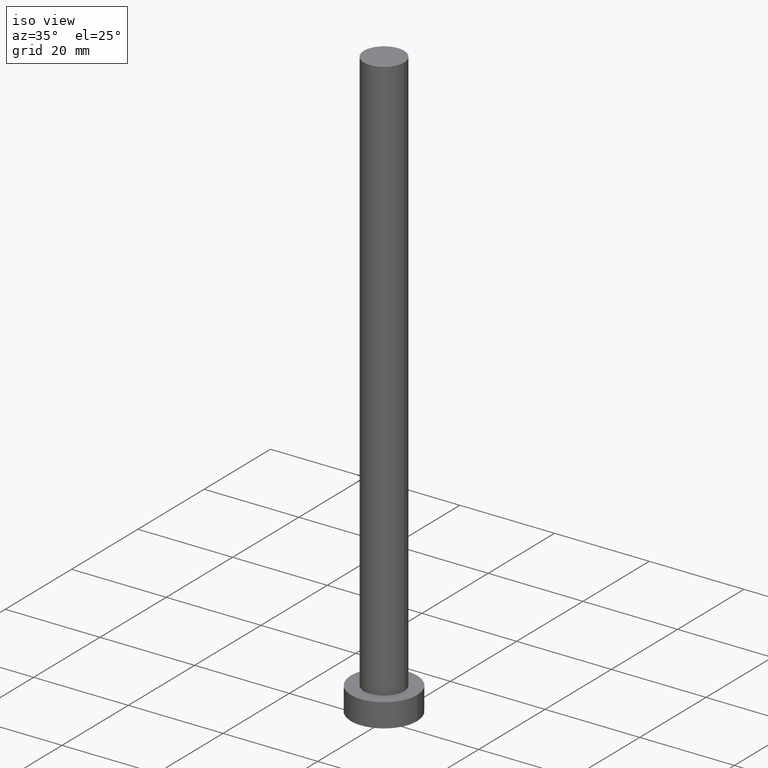
[diagram: clean part render]
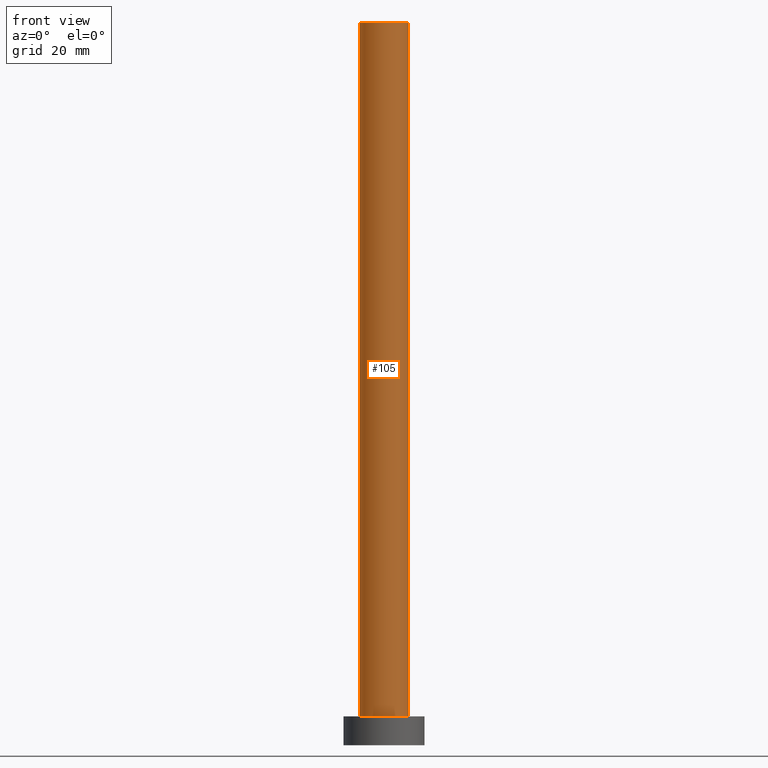
[diagram: tour spotlight — one face highlighted and labeled with its STEP entity id]
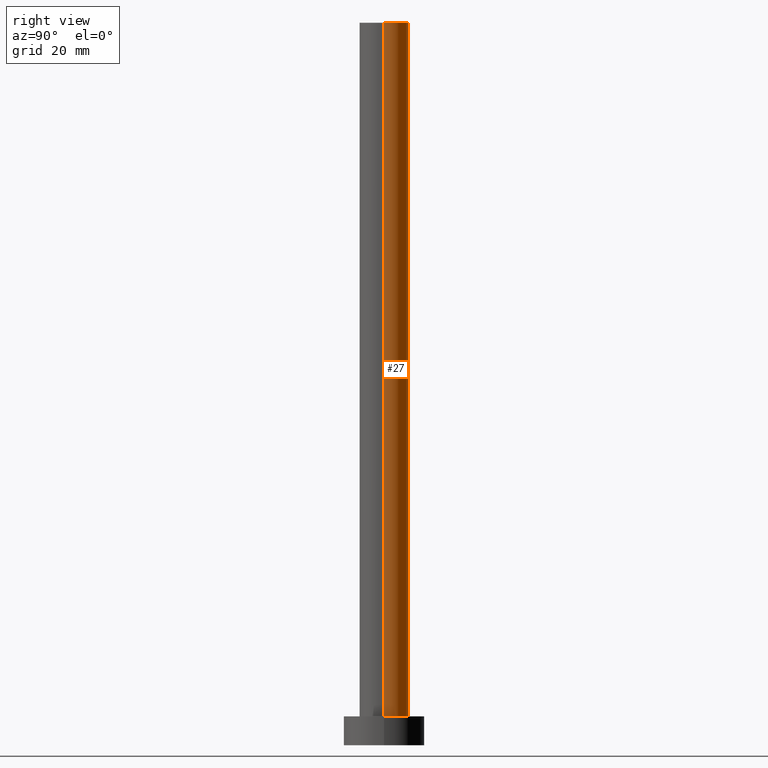
[diagram: tour spotlight — one face highlighted and labeled with its STEP entity id]
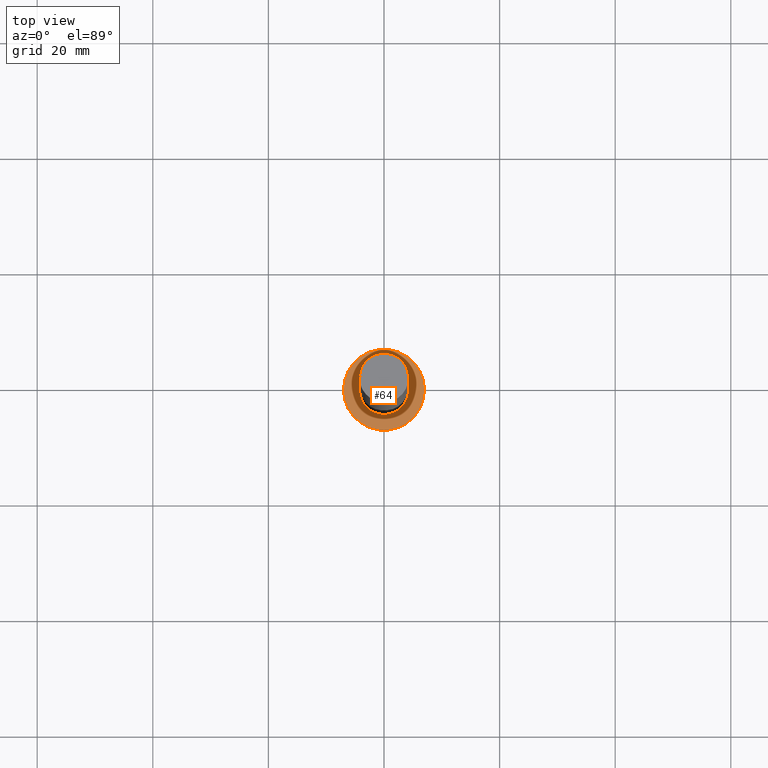
[diagram: tour spotlight — one face highlighted and labeled with its STEP entity id]
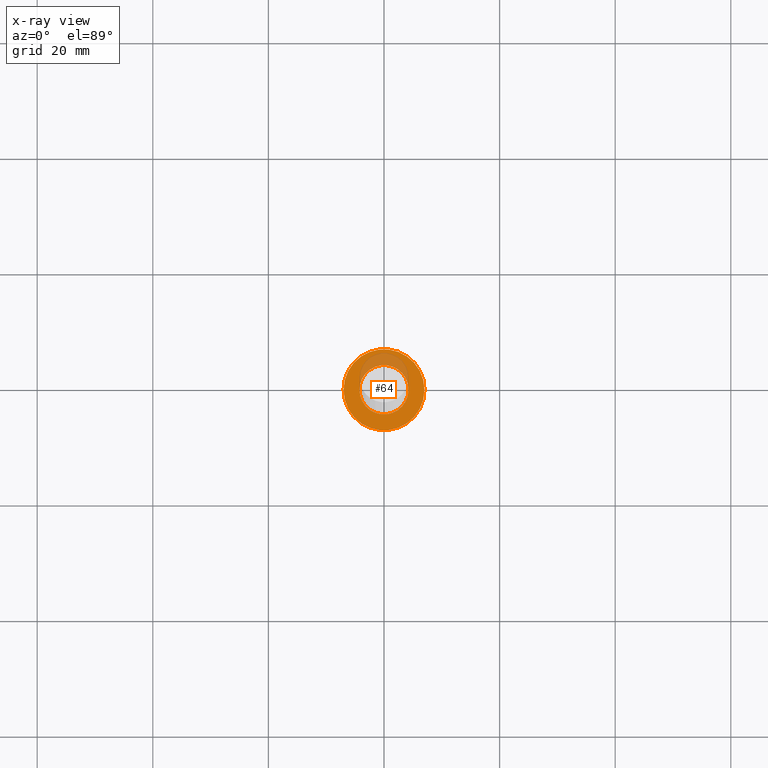
[diagram: x-ray of the same camera — body ghosted, this tour face saturated]
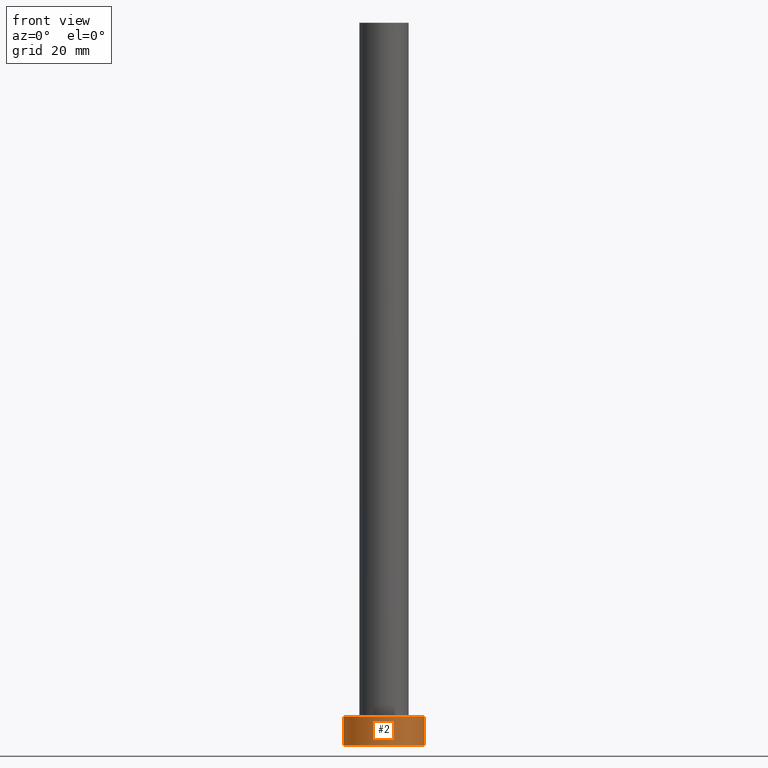
[diagram: tour spotlight — one face highlighted and labeled with its STEP entity id]
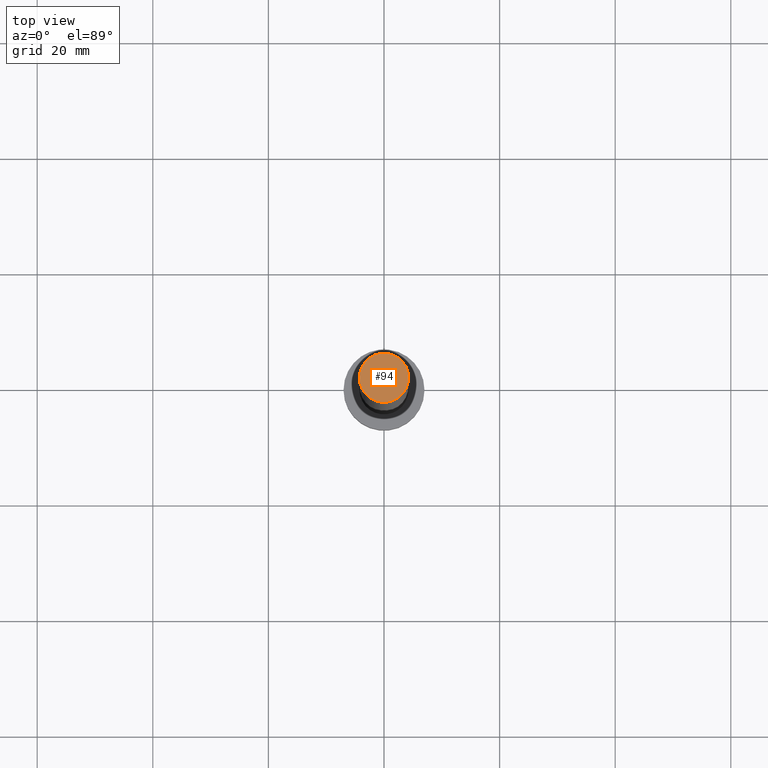
[diagram: tour spotlight — one face highlighted and labeled with its STEP entity id]
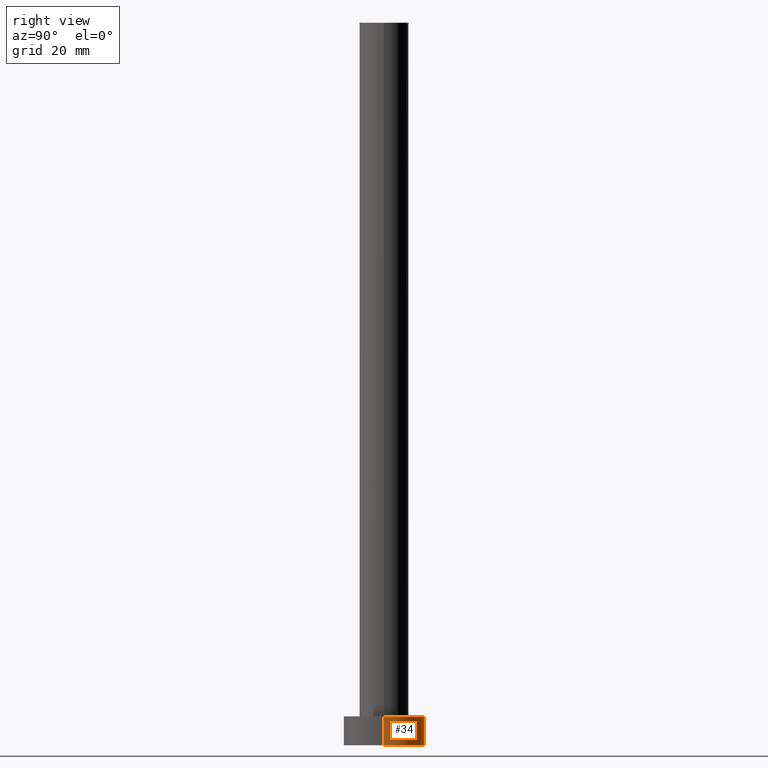
[diagram: tour spotlight — one face highlighted and labeled with its STEP entity id]
A machine part: a face-by-face anatomy tour. The part has 7 B-rep faces; the first image is the clean iso view, then the 6 largest visible faces are spotlighted one at a time (largest first), each with its STEP entity span.

Face 1 — front view, entity #105. In plain terms, the highlighted cylindrical surface (edge-blend (fillet) strip) has radius 4.25 mm, axis along (-0, -0, -1).
Definition (entity closure, byte-faithful):
#3 = CIRCLE ( 'NONE', #137, 4.250000000000000000 ) ;
#6 = DIRECTION ( 'NONE',  ( -0.000000000000000000, -0.000000000000000000, -1.000000000000000000 ) ) ;
#24 = CARTESIAN_POINT ( 'NONE',  ( -4.250000000000000000, 0.000000000000000000, 125.0000000000000000 ) ) ;
#26 = VERTEX_POINT ( 'NONE', #212 ) ;
#28 = FACE_OUTER_BOUND ( 'NONE', #184, .T. ) ;
#30 = DIRECTION ( 'NONE',  ( -0.000000000000000000, -0.000000000000000000, -1.000000000000000000 ) ) ;
#33 = VERTEX_POINT ( 'NONE', #230 ) ;
#41 = ORIENTED_EDGE ( 'NONE', *, *, #47, .F. ) ;
#43 = VECTOR ( 'NONE', #30, 1000.000000000000000 ) ;
#47 = EDGE_CURVE ( 'NONE', #33, #110, #63, .T. ) ;
#48 = DIRECTION ( 'NONE',  ( 0.000000000000000000, 0.000000000000000000, 1.000000000000000000 ) ) ;
#50 = CARTESIAN_POINT ( 'NONE',  ( 0.000000000000000000, 0.000000000000000000, 125.0000000000000000 ) ) ;
#55 = VERTEX_POINT ( 'NONE', #196 ) ;
#63 = CIRCLE ( 'NONE', #151, 4.250000000000000000 ) ;
#65 = VECTOR ( 'NONE', #6, 1000.000000000000000 ) ;
#76 = AXIS2_PLACEMENT_3D ( 'NONE', #50, #163, #81 ) ;
#79 = ORIENTED_EDGE ( 'NONE', *, *, #154, .T. ) ;
#81 = DIRECTION ( 'NONE',  ( -1.000000000000000000, 0.000000000000000000, 0.000000000000000000 ) ) ;
#86 = LINE ( 'NONE', #24, #43 ) ;
#96 = EDGE_CURVE ( 'NONE', #110, #26, #201, .T. ) ;
#105 = ADVANCED_FACE ( 'NONE', ( #28 ), #176, .T. ) ;
#108 = CARTESIAN_POINT ( 'NONE',  ( 0.000000000000000000, 0.000000000000000000, 5.000000000000000000 ) ) ;
#109 = CARTESIAN_POINT ( 'NONE',  ( 4.250000000000000000, 5.204748896376250699E-16, 125.0000000000000000 ) ) ;
#110 = VERTEX_POINT ( 'NONE', #157 ) ;
#111 = DIRECTION ( 'NONE',  ( 1.000000000000000000, 0.000000000000000000, 0.000000000000000000 ) ) ;
#118 = CARTESIAN_POINT ( 'NONE',  ( 0.000000000000000000, 0.000000000000000000, 125.0000000000000000 ) ) ;
#137 = AXIS2_PLACEMENT_3D ( 'NONE', #108, #48, #111 ) ;
#139 = ORIENTED_EDGE ( 'NONE', *, *, #96, .F. ) ;
#151 = AXIS2_PLACEMENT_3D ( 'NONE', #118, #210, #211 ) ;
#154 = EDGE_CURVE ( 'NONE', #55, #26, #3, .T. ) ;
#157 = CARTESIAN_POINT ( 'NONE',  ( 4.250000000000000000, 5.204748896376250699E-16, 125.0000000000000000 ) ) ;
#163 = DIRECTION ( 'NONE',  ( -0.000000000000000000, -0.000000000000000000, -1.000000000000000000 ) ) ;
#176 = CYLINDRICAL_SURFACE ( 'NONE', #76, 4.250000000000000000 ) ;
#184 = EDGE_LOOP ( 'NONE', ( #139, #41, #250, #79 ) ) ;
#196 = CARTESIAN_POINT ( 'NONE',  ( -4.250000000000000000, 0.000000000000000000, 5.000000000000000000 ) ) ;
#201 = LINE ( 'NONE', #109, #65 ) ;
#210 = DIRECTION ( 'NONE',  ( 0.000000000000000000, 0.000000000000000000, 1.000000000000000000 ) ) ;
#211 = DIRECTION ( 'NONE',  ( 1.000000000000000000, 0.000000000000000000, 0.000000000000000000 ) ) ;
#212 = CARTESIAN_POINT ( 'NONE',  ( 4.250000000000000000, 5.204748896376250699E-16, 5.000000000000000000 ) ) ;
#230 = CARTESIAN_POINT ( 'NONE',  ( -4.250000000000000000, 0.000000000000000000, 125.0000000000000000 ) ) ;
#243 = EDGE_CURVE ( 'NONE', #33, #55, #86, .T. ) ;
#250 = ORIENTED_EDGE ( 'NONE', *, *, #243, .T. ) ;

Face 2 — right view, entity #27. In plain terms, the highlighted cylindrical surface (edge-blend (fillet) strip) has radius 4.25 mm, axis along (-0, -0, -1).
Definition (entity closure, byte-faithful):
#1 = DIRECTION ( 'NONE',  ( 0.000000000000000000, 0.000000000000000000, 1.000000000000000000 ) ) ;
#6 = DIRECTION ( 'NONE',  ( -0.000000000000000000, -0.000000000000000000, -1.000000000000000000 ) ) ;
#21 = FACE_OUTER_BOUND ( 'NONE', #248, .T. ) ;
#24 = CARTESIAN_POINT ( 'NONE',  ( -4.250000000000000000, 0.000000000000000000, 125.0000000000000000 ) ) ;
#26 = VERTEX_POINT ( 'NONE', #212 ) ;
#27 = ADVANCED_FACE ( 'NONE', ( #21 ), #190, .T. ) ;
#30 = DIRECTION ( 'NONE',  ( -0.000000000000000000, -0.000000000000000000, -1.000000000000000000 ) ) ;
#32 = AXIS2_PLACEMENT_3D ( 'NONE', #90, #199, #215 ) ;
#33 = VERTEX_POINT ( 'NONE', #230 ) ;
#35 = ORIENTED_EDGE ( 'NONE', *, *, #126, .T. ) ;
#43 = VECTOR ( 'NONE', #30, 1000.000000000000000 ) ;
#55 = VERTEX_POINT ( 'NONE', #196 ) ;
#65 = VECTOR ( 'NONE', #6, 1000.000000000000000 ) ;
#69 = ORIENTED_EDGE ( 'NONE', *, *, #147, .F. ) ;
#72 = DIRECTION ( 'NONE',  ( -1.000000000000000000, 0.000000000000000000, 0.000000000000000000 ) ) ;
#86 = LINE ( 'NONE', #24, #43 ) ;
#90 = CARTESIAN_POINT ( 'NONE',  ( 0.000000000000000000, 0.000000000000000000, 5.000000000000000000 ) ) ;
#96 = EDGE_CURVE ( 'NONE', #110, #26, #201, .T. ) ;
#107 = DIRECTION ( 'NONE',  ( 1.000000000000000000, 0.000000000000000000, 0.000000000000000000 ) ) ;
#109 = CARTESIAN_POINT ( 'NONE',  ( 4.250000000000000000, 5.204748896376250699E-16, 125.0000000000000000 ) ) ;
#110 = VERTEX_POINT ( 'NONE', #157 ) ;
#121 = CARTESIAN_POINT ( 'NONE',  ( 0.000000000000000000, 0.000000000000000000, 125.0000000000000000 ) ) ;
#126 = EDGE_CURVE ( 'NONE', #26, #55, #148, .T. ) ;
#136 = ORIENTED_EDGE ( 'NONE', *, *, #96, .T. ) ;
#147 = EDGE_CURVE ( 'NONE', #110, #33, #244, .T. ) ;
#148 = CIRCLE ( 'NONE', #32, 4.250000000000000000 ) ;
#157 = CARTESIAN_POINT ( 'NONE',  ( 4.250000000000000000, 5.204748896376250699E-16, 125.0000000000000000 ) ) ;
#171 = DIRECTION ( 'NONE',  ( -0.000000000000000000, -0.000000000000000000, -1.000000000000000000 ) ) ;
#188 = AXIS2_PLACEMENT_3D ( 'NONE', #121, #171, #72 ) ;
#190 = CYLINDRICAL_SURFACE ( 'NONE', #188, 4.250000000000000000 ) ;
#191 = AXIS2_PLACEMENT_3D ( 'NONE', #242, #1, #107 ) ;
#196 = CARTESIAN_POINT ( 'NONE',  ( -4.250000000000000000, 0.000000000000000000, 5.000000000000000000 ) ) ;
#199 = DIRECTION ( 'NONE',  ( 0.000000000000000000, 0.000000000000000000, 1.000000000000000000 ) ) ;
#201 = LINE ( 'NONE', #109, #65 ) ;
#208 = ORIENTED_EDGE ( 'NONE', *, *, #243, .F. ) ;
#212 = CARTESIAN_POINT ( 'NONE',  ( 4.250000000000000000, 5.204748896376250699E-16, 5.000000000000000000 ) ) ;
#215 = DIRECTION ( 'NONE',  ( 1.000000000000000000, 0.000000000000000000, 0.000000000000000000 ) ) ;
#230 = CARTESIAN_POINT ( 'NONE',  ( -4.250000000000000000, 0.000000000000000000, 125.0000000000000000 ) ) ;
#242 = CARTESIAN_POINT ( 'NONE',  ( 0.000000000000000000, 0.000000000000000000, 125.0000000000000000 ) ) ;
#243 = EDGE_CURVE ( 'NONE', #33, #55, #86, .T. ) ;
#244 = CIRCLE ( 'NONE', #191, 4.250000000000000000 ) ;
#248 = EDGE_LOOP ( 'NONE', ( #69, #136, #35, #208 ) ) ;

Face 3 — top view, entity #64. An x-ray twin of the same camera follows (body ghosted, this face saturated) — the face is partly hidden behind the body. In plain terms, the highlighted planar face has unit normal (0, 0, 1).
Definition (entity closure, byte-faithful):
#3 = CIRCLE ( 'NONE', #137, 4.250000000000000000 ) ;
#8 = DIRECTION ( 'NONE',  ( 1.000000000000000000, 0.000000000000000000, 0.000000000000000000 ) ) ;
#14 = AXIS2_PLACEMENT_3D ( 'NONE', #142, #125, #8 ) ;
#20 = DIRECTION ( 'NONE',  ( 1.000000000000000000, 0.000000000000000000, 0.000000000000000000 ) ) ;
#26 = VERTEX_POINT ( 'NONE', #212 ) ;
#32 = AXIS2_PLACEMENT_3D ( 'NONE', #90, #199, #215 ) ;
#42 = ORIENTED_EDGE ( 'NONE', *, *, #126, .F. ) ;
#48 = DIRECTION ( 'NONE',  ( 0.000000000000000000, 0.000000000000000000, 1.000000000000000000 ) ) ;
#49 = EDGE_LOOP ( 'NONE', ( #232, #251 ) ) ;
#55 = VERTEX_POINT ( 'NONE', #196 ) ;
#58 = DIRECTION ( 'NONE',  ( 0.000000000000000000, 0.000000000000000000, 1.000000000000000000 ) ) ;
#64 = ADVANCED_FACE ( 'NONE', ( #233, #194 ), #149, .T. ) ;
#74 = ORIENTED_EDGE ( 'NONE', *, *, #154, .F. ) ;
#82 = AXIS2_PLACEMENT_3D ( 'NONE', #140, #153, #102 ) ;
#89 = EDGE_CURVE ( 'NONE', #100, #146, #135, .T. ) ;
#90 = CARTESIAN_POINT ( 'NONE',  ( 0.000000000000000000, 0.000000000000000000, 5.000000000000000000 ) ) ;
#100 = VERTEX_POINT ( 'NONE', #177 ) ;
#102 = DIRECTION ( 'NONE',  ( 1.000000000000000000, 0.000000000000000000, -0.000000000000000000 ) ) ;
#108 = CARTESIAN_POINT ( 'NONE',  ( 0.000000000000000000, 0.000000000000000000, 5.000000000000000000 ) ) ;
#111 = DIRECTION ( 'NONE',  ( 1.000000000000000000, 0.000000000000000000, 0.000000000000000000 ) ) ;
#125 = DIRECTION ( 'NONE',  ( 0.000000000000000000, 0.000000000000000000, 1.000000000000000000 ) ) ;
#126 = EDGE_CURVE ( 'NONE', #26, #55, #148, .T. ) ;
#135 = CIRCLE ( 'NONE', #162, 7.000000000000000000 ) ;
#137 = AXIS2_PLACEMENT_3D ( 'NONE', #108, #48, #111 ) ;
#140 = CARTESIAN_POINT ( 'NONE',  ( 0.000000000000000000, 0.000000000000000000, 5.000000000000000000 ) ) ;
#142 = CARTESIAN_POINT ( 'NONE',  ( 0.000000000000000000, 0.000000000000000000, 5.000000000000000000 ) ) ;
#146 = VERTEX_POINT ( 'NONE', #219 ) ;
#148 = CIRCLE ( 'NONE', #32, 4.250000000000000000 ) ;
#149 = PLANE ( 'NONE',  #82 ) ;
#150 = CARTESIAN_POINT ( 'NONE',  ( 0.000000000000000000, 0.000000000000000000, 5.000000000000000000 ) ) ;
#153 = DIRECTION ( 'NONE',  ( 0.000000000000000000, 0.000000000000000000, 1.000000000000000000 ) ) ;
#154 = EDGE_CURVE ( 'NONE', #55, #26, #3, .T. ) ;
#162 = AXIS2_PLACEMENT_3D ( 'NONE', #150, #58, #20 ) ;
#177 = CARTESIAN_POINT ( 'NONE',  ( -7.000000000000000000, 0.000000000000000000, 5.000000000000000000 ) ) ;
#181 = EDGE_LOOP ( 'NONE', ( #74, #42 ) ) ;
#194 = FACE_OUTER_BOUND ( 'NONE', #49, .T. ) ;
#196 = CARTESIAN_POINT ( 'NONE',  ( -4.250000000000000000, 0.000000000000000000, 5.000000000000000000 ) ) ;
#199 = DIRECTION ( 'NONE',  ( 0.000000000000000000, 0.000000000000000000, 1.000000000000000000 ) ) ;
#212 = CARTESIAN_POINT ( 'NONE',  ( 4.250000000000000000, 5.204748896376250699E-16, 5.000000000000000000 ) ) ;
#215 = DIRECTION ( 'NONE',  ( 1.000000000000000000, 0.000000000000000000, 0.000000000000000000 ) ) ;
#219 = CARTESIAN_POINT ( 'NONE',  ( 7.000000000000000000, 8.572527594031473190E-16, 5.000000000000000000 ) ) ;
#231 = CIRCLE ( 'NONE', #14, 7.000000000000000000 ) ;
#232 = ORIENTED_EDGE ( 'NONE', *, *, #89, .T. ) ;
#233 = FACE_BOUND ( 'NONE', #181, .T. ) ;
#240 = EDGE_CURVE ( 'NONE', #146, #100, #231, .T. ) ;
#251 = ORIENTED_EDGE ( 'NONE', *, *, #240, .T. ) ;

Face 4 — front view, entity #2. In plain terms, the highlighted cylindrical surface (partial cylindrical patch) has radius 7 mm, axis along (-0, -0, -1).
Definition (entity closure, byte-faithful):
#2 = ADVANCED_FACE ( 'NONE', ( #56 ), #152, .T. ) ;
#4 = CARTESIAN_POINT ( 'NONE',  ( -7.000000000000000000, 0.000000000000000000, 5.000000000000000000 ) ) ;
#5 = AXIS2_PLACEMENT_3D ( 'NONE', #192, #22, #115 ) ;
#9 = DIRECTION ( 'NONE',  ( 0.000000000000000000, 0.000000000000000000, 1.000000000000000000 ) ) ;
#19 = LINE ( 'NONE', #138, #228 ) ;
#20 = DIRECTION ( 'NONE',  ( 1.000000000000000000, 0.000000000000000000, 0.000000000000000000 ) ) ;
#22 = DIRECTION ( 'NONE',  ( -0.000000000000000000, -0.000000000000000000, -1.000000000000000000 ) ) ;
#29 = ORIENTED_EDGE ( 'NONE', *, *, #89, .F. ) ;
#39 = EDGE_CURVE ( 'NONE', #146, #75, #19, .T. ) ;
#44 = CIRCLE ( 'NONE', #252, 7.000000000000000000 ) ;
#46 = DIRECTION ( 'NONE',  ( -0.000000000000000000, -0.000000000000000000, -1.000000000000000000 ) ) ;
#52 = VERTEX_POINT ( 'NONE', #119 ) ;
#56 = FACE_OUTER_BOUND ( 'NONE', #241, .T. ) ;
#58 = DIRECTION ( 'NONE',  ( 0.000000000000000000, 0.000000000000000000, 1.000000000000000000 ) ) ;
#75 = VERTEX_POINT ( 'NONE', #173 ) ;
#77 = DIRECTION ( 'NONE',  ( -0.000000000000000000, -0.000000000000000000, -1.000000000000000000 ) ) ;
#87 = DIRECTION ( 'NONE',  ( 1.000000000000000000, 0.000000000000000000, 0.000000000000000000 ) ) ;
#89 = EDGE_CURVE ( 'NONE', #100, #146, #135, .T. ) ;
#100 = VERTEX_POINT ( 'NONE', #177 ) ;
#104 = ORIENTED_EDGE ( 'NONE', *, *, #141, .T. ) ;
#115 = DIRECTION ( 'NONE',  ( -1.000000000000000000, 0.000000000000000000, 0.000000000000000000 ) ) ;
#116 = EDGE_CURVE ( 'NONE', #52, #75, #44, .T. ) ;
#119 = CARTESIAN_POINT ( 'NONE',  ( -7.000000000000000000, 0.000000000000000000, 0.000000000000000000 ) ) ;
#135 = CIRCLE ( 'NONE', #162, 7.000000000000000000 ) ;
#138 = CARTESIAN_POINT ( 'NONE',  ( 7.000000000000000000, 8.572527594031473190E-16, 5.000000000000000000 ) ) ;
#141 = EDGE_CURVE ( 'NONE', #100, #52, #179, .T. ) ;
#144 = CARTESIAN_POINT ( 'NONE',  ( 0.000000000000000000, 0.000000000000000000, 0.000000000000000000 ) ) ;
#146 = VERTEX_POINT ( 'NONE', #219 ) ;
#150 = CARTESIAN_POINT ( 'NONE',  ( 0.000000000000000000, 0.000000000000000000, 5.000000000000000000 ) ) ;
#152 = CYLINDRICAL_SURFACE ( 'NONE', #5, 7.000000000000000000 ) ;
#162 = AXIS2_PLACEMENT_3D ( 'NONE', #150, #58, #20 ) ;
#173 = CARTESIAN_POINT ( 'NONE',  ( 7.000000000000000000, 8.572527594031473190E-16, 0.000000000000000000 ) ) ;
#174 = VECTOR ( 'NONE', #46, 1000.000000000000000 ) ;
#177 = CARTESIAN_POINT ( 'NONE',  ( -7.000000000000000000, 0.000000000000000000, 5.000000000000000000 ) ) ;
#179 = LINE ( 'NONE', #4, #174 ) ;
#192 = CARTESIAN_POINT ( 'NONE',  ( 0.000000000000000000, 0.000000000000000000, 5.000000000000000000 ) ) ;
#202 = ORIENTED_EDGE ( 'NONE', *, *, #39, .F. ) ;
#219 = CARTESIAN_POINT ( 'NONE',  ( 7.000000000000000000, 8.572527594031473190E-16, 5.000000000000000000 ) ) ;
#224 = ORIENTED_EDGE ( 'NONE', *, *, #116, .T. ) ;
#228 = VECTOR ( 'NONE', #77, 1000.000000000000000 ) ;
#241 = EDGE_LOOP ( 'NONE', ( #202, #29, #104, #224 ) ) ;
#252 = AXIS2_PLACEMENT_3D ( 'NONE', #144, #9, #87 ) ;

Face 5 — top view, entity #94. In plain terms, the highlighted planar face has unit normal (0, 0, 1).
Definition (entity closure, byte-faithful):
#1 = DIRECTION ( 'NONE',  ( 0.000000000000000000, 0.000000000000000000, 1.000000000000000000 ) ) ;
#11 = ORIENTED_EDGE ( 'NONE', *, *, #147, .T. ) ;
#33 = VERTEX_POINT ( 'NONE', #230 ) ;
#37 = FACE_OUTER_BOUND ( 'NONE', #88, .T. ) ;
#47 = EDGE_CURVE ( 'NONE', #33, #110, #63, .T. ) ;
#59 = AXIS2_PLACEMENT_3D ( 'NONE', #101, #120, #180 ) ;
#63 = CIRCLE ( 'NONE', #151, 4.250000000000000000 ) ;
#88 = EDGE_LOOP ( 'NONE', ( #128, #11 ) ) ;
#94 = ADVANCED_FACE ( 'NONE', ( #37 ), #253, .T. ) ;
#101 = CARTESIAN_POINT ( 'NONE',  ( 0.000000000000000000, 0.000000000000000000, 125.0000000000000000 ) ) ;
#107 = DIRECTION ( 'NONE',  ( 1.000000000000000000, 0.000000000000000000, 0.000000000000000000 ) ) ;
#110 = VERTEX_POINT ( 'NONE', #157 ) ;
#118 = CARTESIAN_POINT ( 'NONE',  ( 0.000000000000000000, 0.000000000000000000, 125.0000000000000000 ) ) ;
#120 = DIRECTION ( 'NONE',  ( 0.000000000000000000, 0.000000000000000000, 1.000000000000000000 ) ) ;
#128 = ORIENTED_EDGE ( 'NONE', *, *, #47, .T. ) ;
#147 = EDGE_CURVE ( 'NONE', #110, #33, #244, .T. ) ;
#151 = AXIS2_PLACEMENT_3D ( 'NONE', #118, #210, #211 ) ;
#157 = CARTESIAN_POINT ( 'NONE',  ( 4.250000000000000000, 5.204748896376250699E-16, 125.0000000000000000 ) ) ;
#180 = DIRECTION ( 'NONE',  ( 1.000000000000000000, 0.000000000000000000, -0.000000000000000000 ) ) ;
#191 = AXIS2_PLACEMENT_3D ( 'NONE', #242, #1, #107 ) ;
#210 = DIRECTION ( 'NONE',  ( 0.000000000000000000, 0.000000000000000000, 1.000000000000000000 ) ) ;
#211 = DIRECTION ( 'NONE',  ( 1.000000000000000000, 0.000000000000000000, 0.000000000000000000 ) ) ;
#230 = CARTESIAN_POINT ( 'NONE',  ( -4.250000000000000000, 0.000000000000000000, 125.0000000000000000 ) ) ;
#242 = CARTESIAN_POINT ( 'NONE',  ( 0.000000000000000000, 0.000000000000000000, 125.0000000000000000 ) ) ;
#244 = CIRCLE ( 'NONE', #191, 4.250000000000000000 ) ;
#253 = PLANE ( 'NONE',  #59 ) ;

Face 6 — right view, entity #34. In plain terms, the highlighted cylindrical surface (partial cylindrical patch) has radius 7 mm, axis along (-0, -0, -1).
Definition (entity closure, byte-faithful):
#4 = CARTESIAN_POINT ( 'NONE',  ( -7.000000000000000000, 0.000000000000000000, 5.000000000000000000 ) ) ;
#8 = DIRECTION ( 'NONE',  ( 1.000000000000000000, 0.000000000000000000, 0.000000000000000000 ) ) ;
#14 = AXIS2_PLACEMENT_3D ( 'NONE', #142, #125, #8 ) ;
#19 = LINE ( 'NONE', #138, #228 ) ;
#23 = AXIS2_PLACEMENT_3D ( 'NONE', #70, #221, #159 ) ;
#34 = ADVANCED_FACE ( 'NONE', ( #40 ), #156, .T. ) ;
#39 = EDGE_CURVE ( 'NONE', #146, #75, #19, .T. ) ;
#40 = FACE_OUTER_BOUND ( 'NONE', #62, .T. ) ;
#46 = DIRECTION ( 'NONE',  ( -0.000000000000000000, -0.000000000000000000, -1.000000000000000000 ) ) ;
#52 = VERTEX_POINT ( 'NONE', #119 ) ;
#60 = DIRECTION ( 'NONE',  ( -0.000000000000000000, -0.000000000000000000, -1.000000000000000000 ) ) ;
#62 = EDGE_LOOP ( 'NONE', ( #175, #161, #226, #254 ) ) ;
#70 = CARTESIAN_POINT ( 'NONE',  ( 0.000000000000000000, 0.000000000000000000, 0.000000000000000000 ) ) ;
#75 = VERTEX_POINT ( 'NONE', #173 ) ;
#77 = DIRECTION ( 'NONE',  ( -0.000000000000000000, -0.000000000000000000, -1.000000000000000000 ) ) ;
#91 = AXIS2_PLACEMENT_3D ( 'NONE', #198, #60, #133 ) ;
#100 = VERTEX_POINT ( 'NONE', #177 ) ;
#119 = CARTESIAN_POINT ( 'NONE',  ( -7.000000000000000000, 0.000000000000000000, 0.000000000000000000 ) ) ;
#125 = DIRECTION ( 'NONE',  ( 0.000000000000000000, 0.000000000000000000, 1.000000000000000000 ) ) ;
#133 = DIRECTION ( 'NONE',  ( -1.000000000000000000, 0.000000000000000000, 0.000000000000000000 ) ) ;
#138 = CARTESIAN_POINT ( 'NONE',  ( 7.000000000000000000, 8.572527594031473190E-16, 5.000000000000000000 ) ) ;
#141 = EDGE_CURVE ( 'NONE', #100, #52, #179, .T. ) ;
#142 = CARTESIAN_POINT ( 'NONE',  ( 0.000000000000000000, 0.000000000000000000, 5.000000000000000000 ) ) ;
#146 = VERTEX_POINT ( 'NONE', #219 ) ;
#156 = CYLINDRICAL_SURFACE ( 'NONE', #91, 7.000000000000000000 ) ;
#159 = DIRECTION ( 'NONE',  ( 1.000000000000000000, 0.000000000000000000, 0.000000000000000000 ) ) ;
#161 = ORIENTED_EDGE ( 'NONE', *, *, #39, .T. ) ;
#173 = CARTESIAN_POINT ( 'NONE',  ( 7.000000000000000000, 8.572527594031473190E-16, 0.000000000000000000 ) ) ;
#174 = VECTOR ( 'NONE', #46, 1000.000000000000000 ) ;
#175 = ORIENTED_EDGE ( 'NONE', *, *, #240, .F. ) ;
#177 = CARTESIAN_POINT ( 'NONE',  ( -7.000000000000000000, 0.000000000000000000, 5.000000000000000000 ) ) ;
#179 = LINE ( 'NONE', #4, #174 ) ;
#198 = CARTESIAN_POINT ( 'NONE',  ( 0.000000000000000000, 0.000000000000000000, 5.000000000000000000 ) ) ;
#214 = CIRCLE ( 'NONE', #23, 7.000000000000000000 ) ;
#217 = EDGE_CURVE ( 'NONE', #75, #52, #214, .T. ) ;
#219 = CARTESIAN_POINT ( 'NONE',  ( 7.000000000000000000, 8.572527594031473190E-16, 5.000000000000000000 ) ) ;
#221 = DIRECTION ( 'NONE',  ( 0.000000000000000000, 0.000000000000000000, 1.000000000000000000 ) ) ;
#226 = ORIENTED_EDGE ( 'NONE', *, *, #217, .T. ) ;
#228 = VECTOR ( 'NONE', #77, 1000.000000000000000 ) ;
#231 = CIRCLE ( 'NONE', #14, 7.000000000000000000 ) ;
#240 = EDGE_CURVE ( 'NONE', #146, #100, #231, .T. ) ;
#254 = ORIENTED_EDGE ( 'NONE', *, *, #141, .F. ) ;